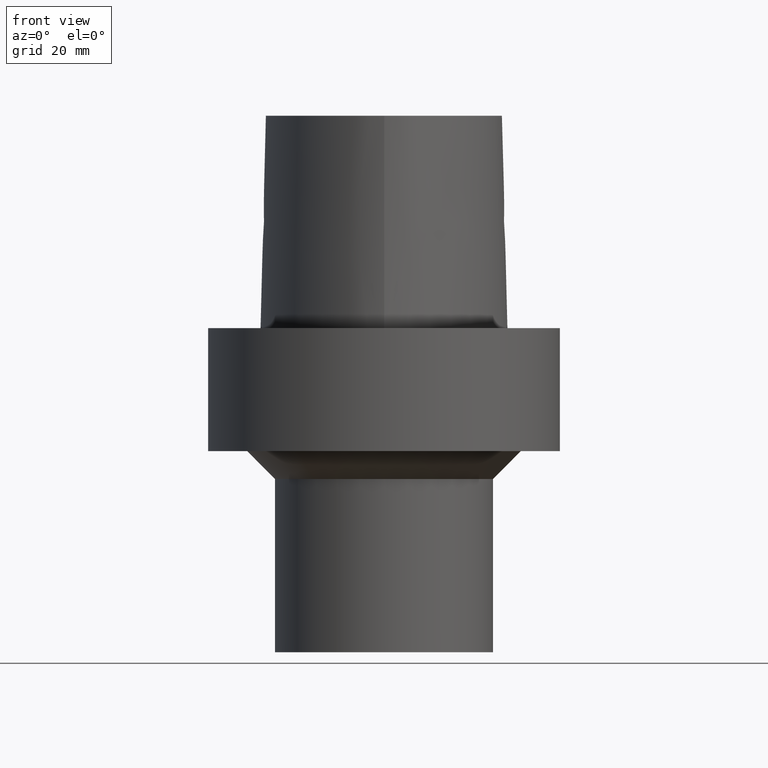
[diagram: clean part render]
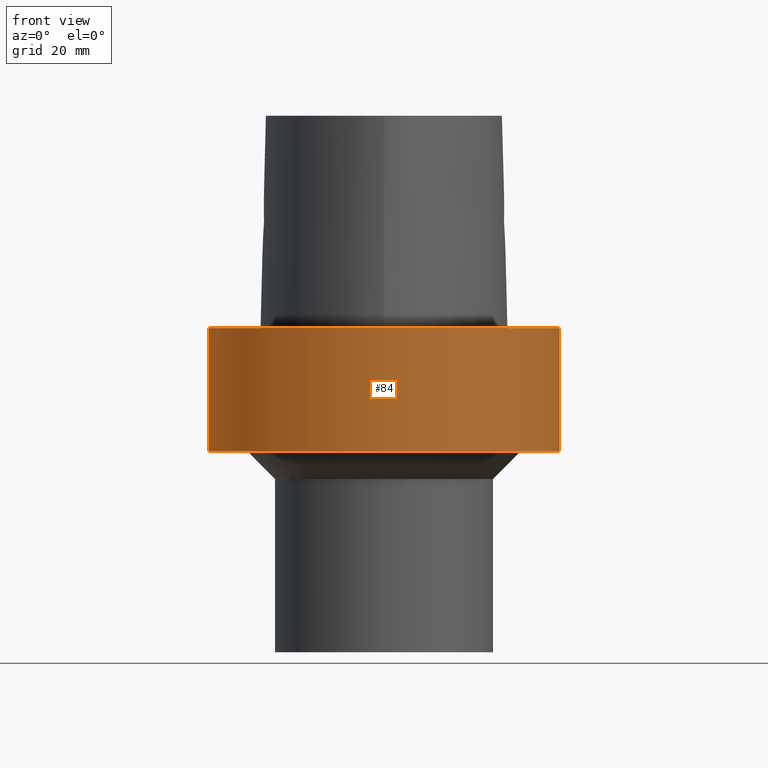
[diagram: same view with one face highlighted and labeled with its STEP entity id]
A machine part, front view. The second image highlights one B-rep face of the part: STEP entity #84.
In plain terms, the highlighted cylindrical surface (bore or boss wall) has radius 31.4925 mm, axis along (-0, -0, 1).
Its self-contained STEP definition (entity closure, byte-faithful):
#84=ADVANCED_FACE('',(#108,#109),#110,.T.);
#108=FACE_BOUND('',#271,.T.);
#109=FACE_BOUND('',#272,.T.);
#110=CYLINDRICAL_SURFACE('',#273,31.4925);
#271=EDGE_LOOP('',(#319));
#272=EDGE_LOOP('',(#320));
#273=AXIS2_PLACEMENT_3D('',#321,#322,#323);
#319=ORIENTED_EDGE('',*,*,#333,.F.);
#320=ORIENTED_EDGE('',*,*,#336,.T.);
#321=CARTESIAN_POINT('',(6.73555739531044E-016,1.34711147906209E-015,-11.0));
#322=DIRECTION('',(-6.12323399573677E-017,-1.22464679914735E-016,1.0));
#323=DIRECTION('',(-1.23259516440783E-032,1.0,1.22464679914735E-016));
#333=EDGE_CURVE('',#352,#352,#353,.T.);
#336=EDGE_CURVE('',#358,#358,#359,.T.);
#352=VERTEX_POINT('',#441);
#353=CIRCLE('',#442,31.4925);
#358=VERTEX_POINT('',#447);
#359=CIRCLE('',#448,31.4925);
#441=CARTESIAN_POINT('',(1.34711147906209E-015,31.4925,-22.0));
#442=AXIS2_PLACEMENT_3D('',#458,#459,#460);
#447=CARTESIAN_POINT('',(-3.88175032151136E-031,31.4925,3.8567189322148E-015));
#448=AXIS2_PLACEMENT_3D('',#467,#468,#469);
#458=CARTESIAN_POINT('',(1.34711147906209E-015,2.69422295812418E-015,-22.0));
#459=DIRECTION('',(6.12323399573677E-017,1.22464679914735E-016,-1.0));
#460=DIRECTION('',(-1.23259516440783E-032,1.0,1.22464679914735E-016));
#467=CARTESIAN_POINT('',(0.0,0.0,0.0));
#468=DIRECTION('',(6.12323399573677E-017,1.22464679914735E-016,-1.0));
#469=DIRECTION('',(-1.23259516440783E-032,1.0,1.22464679914735E-016));